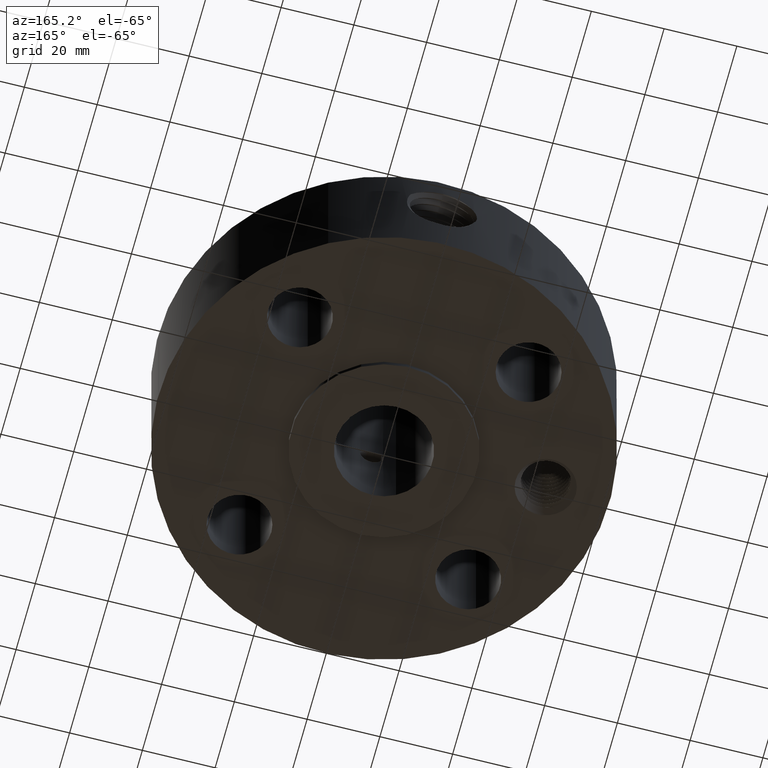
[diagram: clean part render]
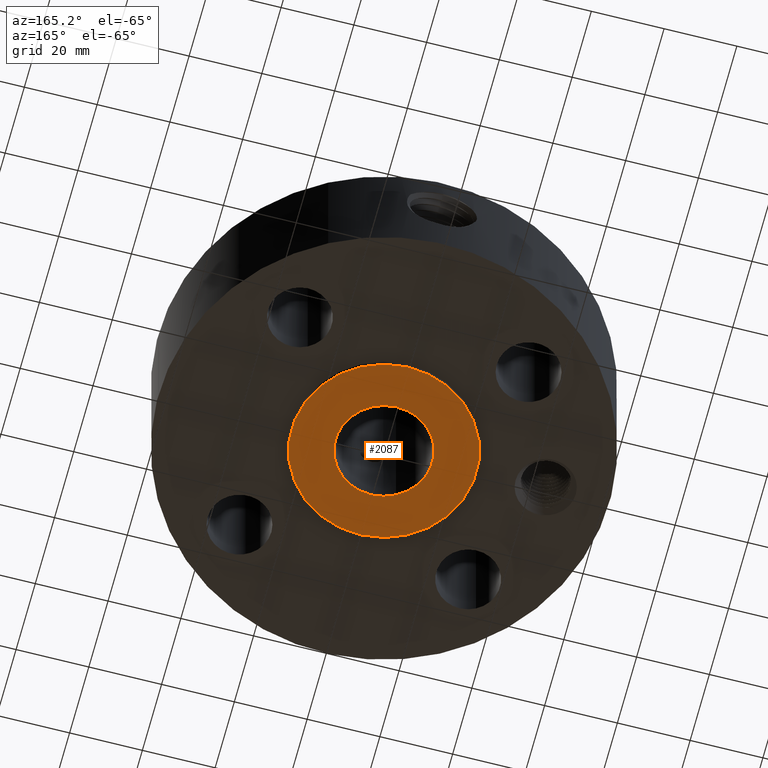
[diagram: same view with one face highlighted and labeled with its STEP entity id]
A machine part, auxiliary view. The second image highlights one B-rep face of the part: STEP entity #2087.
In plain terms, the highlighted planar face has unit normal (0, 0, -1).
Its self-contained STEP definition (entity closure, byte-faithful):
#1121=AXIS2_PLACEMENT_3D('Circle Axis2P3D',#1119,#1120,$) ;
#1147=AXIS2_PLACEMENT_3D('Circle Axis2P3D',#1145,#1146,$) ;
#2063=AXIS2_PLACEMENT_3D('Plane Axis2P3D',#2060,#2061,#2062) ;
#2071=AXIS2_PLACEMENT_3D('Circle Axis2P3D',#2069,#2070,$) ;
#2080=AXIS2_PLACEMENT_3D('Circle Axis2P3D',#2078,#2079,$) ;
#1119=CARTESIAN_POINT('Axis2P3D Location',(0.,0.,0.)) ;
#1123=CARTESIAN_POINT('Vertex',(0.479425538606,0.877582561894,0.)) ;
#1125=CARTESIAN_POINT('Vertex',(-0.479425538606,-0.877582561894,0.)) ;
#1145=CARTESIAN_POINT('Axis2P3D Location',(0.,0.,0.)) ;
#2060=CARTESIAN_POINT('Axis2P3D Location',(0.,0.524500000002,0.)) ;
#2069=CARTESIAN_POINT('Axis2P3D Location',(0.,0.,0.)) ;
#2073=CARTESIAN_POINT('Vertex',(0.251458694999,0.460292053713,2.79741234551E-016)) ;
#2075=CARTESIAN_POINT('Vertex',(-0.251458694999,-0.460292053713,2.79741234551E-016)) ;
#2078=CARTESIAN_POINT('Axis2P3D Location',(0.,0.,0.)) ;
#1120=DIRECTION('Axis2P3D Direction',(0.,0.,-0.0393700787402)) ;
#1146=DIRECTION('Axis2P3D Direction',(0.,0.,-0.0393700787402)) ;
#2061=DIRECTION('Axis2P3D Direction',(0.,0.,-0.0393700787402)) ;
#2062=DIRECTION('Axis2P3D XDirection',(0.0393700787402,0.,0.)) ;
#2070=DIRECTION('Axis2P3D Direction',(0.,0.,-0.0393700787402)) ;
#2079=DIRECTION('Axis2P3D Direction',(0.,0.,-0.0393700787402)) ;
#2066=ORIENTED_EDGE('',*,*,#1149,.T.) ;
#2067=ORIENTED_EDGE('',*,*,#1127,.T.) ;
#2084=ORIENTED_EDGE('',*,*,#2077,.F.) ;
#2085=ORIENTED_EDGE('',*,*,#2082,.F.) ;
#2086=FACE_BOUND('',#2083,.T.) ;
#2087=ADVANCED_FACE('PartBody',(#2068,#2086),#2064,.T.) ;
#1122=CIRCLE('generated circle',#1121,1.) ;
#1148=CIRCLE('generated circle',#1147,1.) ;
#2072=CIRCLE('generated circle',#2071,0.524500000002) ;
#2081=CIRCLE('generated circle',#2080,0.524500000002) ;
#1127=EDGE_CURVE('',#1124,#1126,#1122,.T.) ;
#1149=EDGE_CURVE('',#1126,#1124,#1148,.T.) ;
#2077=EDGE_CURVE('',#2074,#2076,#2072,.T.) ;
#2082=EDGE_CURVE('',#2076,#2074,#2081,.T.) ;
#2065=EDGE_LOOP('',(#2066,#2067)) ;
#2083=EDGE_LOOP('',(#2084,#2085)) ;
#2068=FACE_OUTER_BOUND('',#2065,.T.) ;
#2064=PLANE('',#2063) ;
#1124=VERTEX_POINT('',#1123) ;
#1126=VERTEX_POINT('',#1125) ;
#2074=VERTEX_POINT('',#2073) ;
#2076=VERTEX_POINT('',#2075) ;